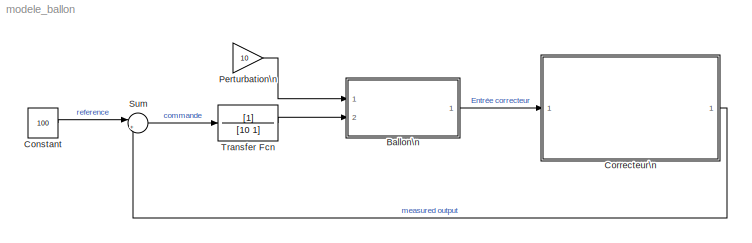
MODEL modele_ballon
KIND model
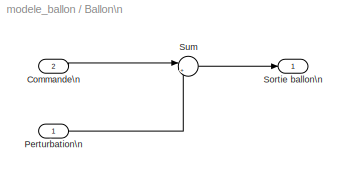
BLOCK [SubSystem] Ballon\n
  Ports = [2, 1]
  RequestExecContextInheritance = off
  SID = 22
BLOCK [Inport] Ballon\n/Commande\n
  IconDisplay = Port number
  Port = 2
  SID = 23
BLOCK [Inport] Ballon\n/Perturbation\n
  IconDisplay = Port number
  SID = 31
BLOCK [Outport] Ballon\n/Sortie ballon\n
  IconDisplay = Port number
  SID = 24
BLOCK [Sum] Ballon\n/Sum
  IconShape = round
  InputSameDT = off
  Inputs = |++
  OutDataTypeStr = Inherit: Inherit via internal rule
  Ports = [2, 1]
  SID = 32
  SaturateOnIntegerOverflow = off
BLOCK [Constant] Constant
  SID = 37
  Value = 100
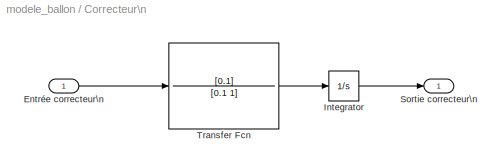
BLOCK [SubSystem] Correcteur\n
  Ports = [1, 1]
  RequestExecContextInheritance = off
  SID = 19
BLOCK [Inport] Correcteur\n/Entrée correcteur\n
  IconDisplay = Port number
  SID = 20
BLOCK [Integrator] Correcteur\n/Integrator
  Ports = [1, 1]
  SID = 33
BLOCK [Outport] Correcteur\n/Sortie correcteur\n
  IconDisplay = Port number
  SID = 21
BLOCK [TransferFcn] Correcteur\n/Transfer Fcn
  Denominator = [0.1 1]
  Numerator = [0.1]
  SID = 35
BLOCK [Gain] Perturbation\n
  Gain = 10
  OutDataTypeStr = Inherit: Inherit via internal rule
  ParamDataTypeStr = Inherit: Inherit via internal rule
  SID = 30
  SaturateOnIntegerOverflow = off
BLOCK [Sum] Sum
  IconShape = round
  InputSameDT = off
  Inputs = |+-
  OutDataTypeStr = Inherit: Inherit via internal rule
  Ports = [2, 1]
  SID = 4
  SaturateOnIntegerOverflow = off
BLOCK [TransferFcn] Transfer Fcn
  Denominator = [10 1]
  SID = 36
LINE Ballon\n/Commande\n:1 -> Ballon\n/Sum:1
LINE Ballon\n/Perturbation\n:1 -> Ballon\n/Sum:2
LINE Ballon\n/Sum:1 -> Ballon\n/Sortie ballon\n:1
LINE Ballon\n:1 -> Correcteur\n:1
LINE Constant:1 -> Sum:1
LINE Correcteur\n/Entrée correcteur\n:1 -> Correcteur\n/Transfer Fcn:1
LINE Correcteur\n/Integrator:1 -> Correcteur\n/Sortie correcteur\n:1
LINE Correcteur\n/Transfer Fcn:1 -> Correcteur\n/Integrator:1
LINE Correcteur\n:1 -> Sum:2
LINE Perturbation\n:1 -> Ballon\n:1
LINE Sum:1 -> Transfer Fcn:1
LINE Transfer Fcn:1 -> Ballon\n:2
